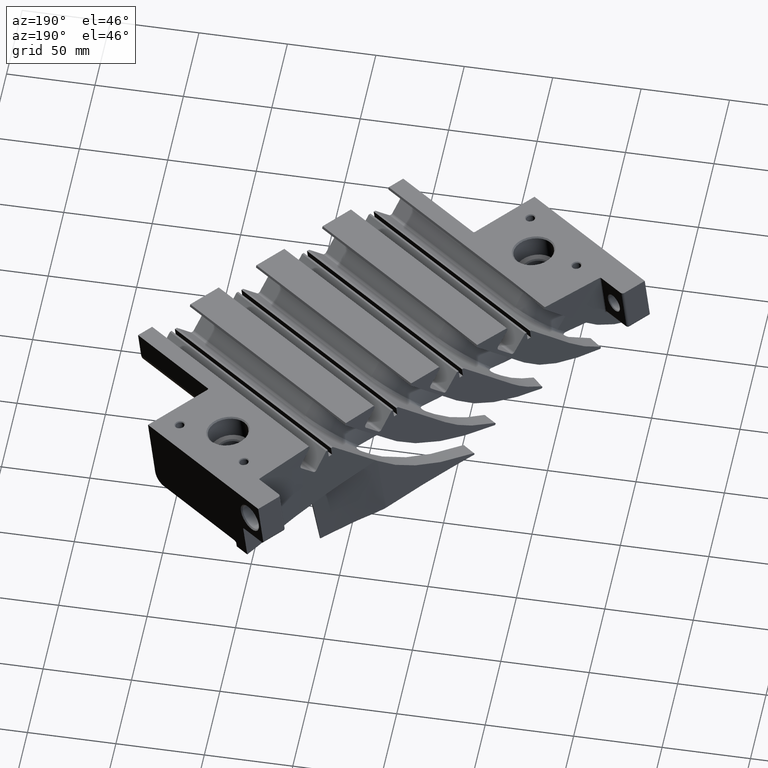
[diagram: clean part render]
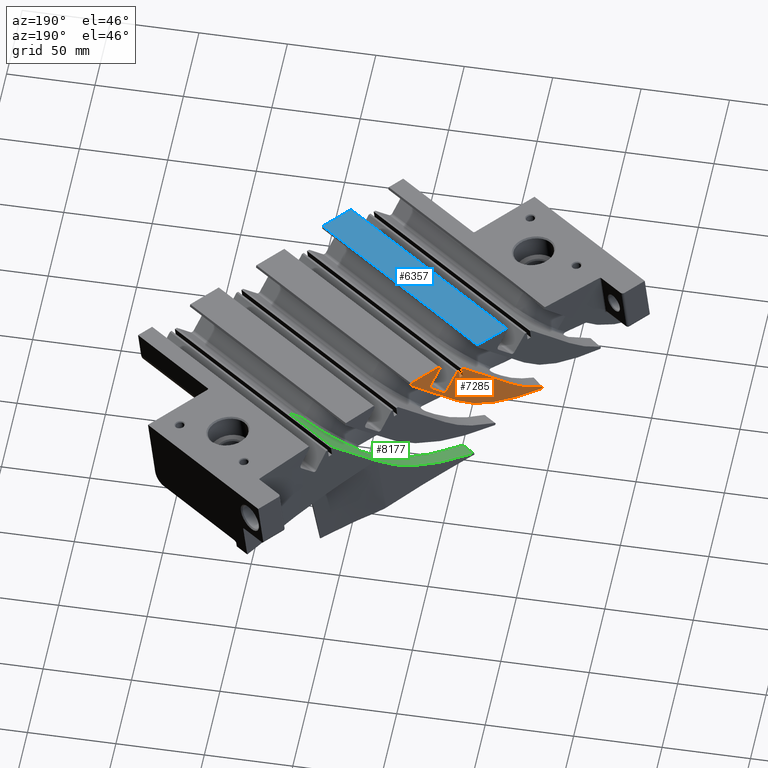
[diagram: same view with three faces highlighted in distinct colors, each labeled with its STEP entity id]
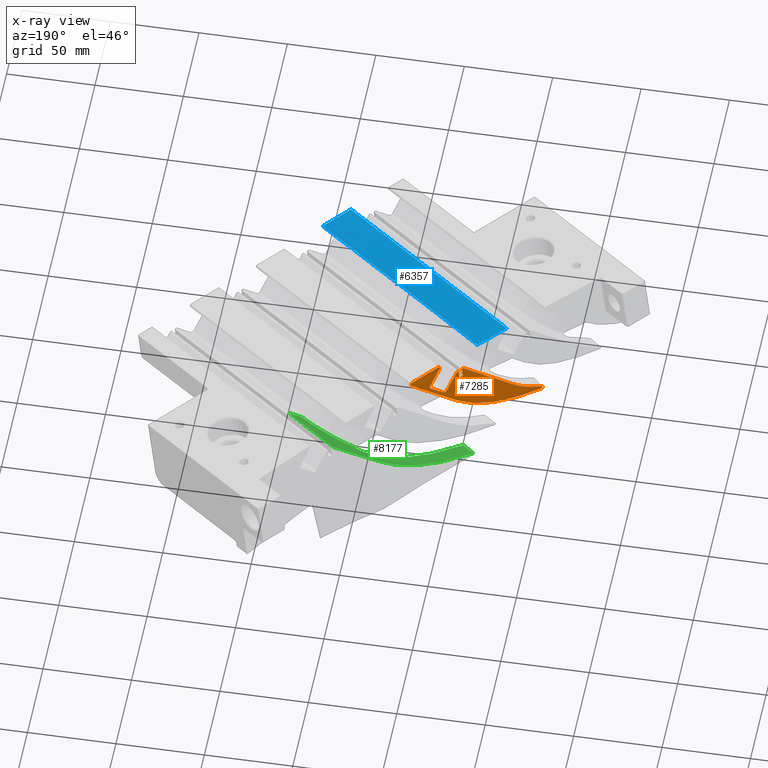
[diagram: x-ray of the same camera — body ghosted, the three highlighted faces saturated]
A machine part, auxiliary view with three faces highlighted in distinct colors.
The next image is the same camera in x-ray (body ghosted, the three faces saturated) — at least one of them is partly hidden behind the body in this view.
Their STEP definitions:

[orange] entity #7285 — the highlighted face is a freeform B-spline surface patch.
#100=CARTESIAN_POINT('',(8.946163377783E1,-2.845876191204E1,-4.262308605086E0));
#101=CARTESIAN_POINT('',(8.937548008183E1,-2.855511276841E1,-4.258078233297E0));
#102=CARTESIAN_POINT('',(8.920271211569E1,-2.874730867778E1,-4.249518315818E0));
#103=CARTESIAN_POINT('',(8.902902771278E1,-2.893849862115E1,-4.240761547462E0));
#104=CARTESIAN_POINT('',(8.894195803655E1,-2.903384340409E1,-4.236334197847E0));
#999=CARTESIAN_POINT('',(8.946163377783E1,-2.845876191204E1,-4.262308605086E0));
#1000=CARTESIAN_POINT('',(8.946287005312E1,-2.845549072981E1,
-4.270871892415E0));
#1001=CARTESIAN_POINT('',(8.946534004942E1,-2.844895263744E1,
-4.287988062591E0));
#1002=CARTESIAN_POINT('',(8.946780734160E1,-2.844242076865E1,
-4.305082174093E0));
#1003=CARTESIAN_POINT('',(8.946903971757E1,-2.843915695431E1,
-4.313624021398E0));
#1005=CARTESIAN_POINT('',(8.892093624821E1,-2.904570831648E1,
-4.286235261508E0));
#1006=CARTESIAN_POINT('',(8.892443825122E1,-2.904373228056E1,
-4.277923208194E0));
#1007=CARTESIAN_POINT('',(8.893144388574E1,-2.903977875934E1,
-4.261294310962E0));
#1008=CARTESIAN_POINT('',(8.893845277690E1,-2.903582233908E1,
-4.244655832446E0));
#1009=CARTESIAN_POINT('',(8.894195803655E1,-2.903384340409E1,
-4.236334197847E0));
#1011=CARTESIAN_POINT('',(8.908861255897E1,-2.879380619384E1,
-4.602986678249E0));
#1012=CARTESIAN_POINT('',(8.906087668636E1,-2.883567044627E1,
-4.550454539235E0));
#1013=CARTESIAN_POINT('',(8.900519497087E1,-2.891951857642E1,
-4.445130539331E0));
#1014=CARTESIAN_POINT('',(8.894909268589E1,-2.900360538389E1,
-4.339286969117E0));
#1015=CARTESIAN_POINT('',(8.892093624821E1,-2.904570831648E1,
-4.286235261508E0));
#1017=CARTESIAN_POINT('',(8.907747120095E1,-2.878752692183E1,
-4.686870153948E0));
#1018=CARTESIAN_POINT('',(8.908341370258E1,-2.878258915587E1,
-4.679797619225E0));
#1019=CARTESIAN_POINT('',(8.909313966587E1,-2.877595966487E1,
-4.661607258736E0));
#1020=CARTESIAN_POINT('',(8.909741268266E1,-2.877834750331E1,
-4.629529415606E0));
#1021=CARTESIAN_POINT('',(8.909261868131E1,-2.878775939231E1,
-4.610574331197E0));
#1022=CARTESIAN_POINT('',(8.908861255897E1,-2.879380619384E1,
-4.602986678249E0));
#1024=CARTESIAN_POINT('',(8.883306463128E1,-2.898981758871E1,
-4.977120604081E0));
#1025=CARTESIAN_POINT('',(8.887408283082E1,-2.895600065330E1,
-4.928514751475E0));
#1026=CARTESIAN_POINT('',(8.895583438532E1,-2.888846762105E1,
-4.831533602295E0));
#1027=CARTESIAN_POINT('',(8.903701947092E1,-2.882113922647E1,
-4.735014232430E0));
#1028=CARTESIAN_POINT('',(8.907747120095E1,-2.878752692183E1,
-4.686870153948E0));
#1030=CARTESIAN_POINT('',(8.877583323634E1,-2.905239854072E1,
-4.974203785853E0));
#1031=CARTESIAN_POINT('',(8.877986615165E1,-2.904638147379E1,
-4.981793114192E0));
#1032=CARTESIAN_POINT('',(8.879112863677E1,-2.903172372354E1,
-4.993144222776E0));
#1033=CARTESIAN_POINT('',(8.881302455708E1,-2.900778383687E1,
-4.994247269520E0));
#1034=CARTESIAN_POINT('',(8.882709947722E1,-2.899473548447E1,
-4.984189207831E0));
#1035=CARTESIAN_POINT('',(8.883306463128E1,-2.898981758871E1,
-4.977120604081E0));
#1037=CARTESIAN_POINT('',(8.859266653424E1,-2.932431284309E1,
-4.630469051386E0));
#1038=CARTESIAN_POINT('',(8.862344271662E1,-2.927885186958E1,
-4.688065712194E0));
#1039=CARTESIAN_POINT('',(8.868474643542E1,-2.918807161736E1,
-4.802951447719E0));
#1040=CARTESIAN_POINT('',(8.874555360030E1,-2.909757543698E1,
-4.917222152857E0));
#1041=CARTESIAN_POINT('',(8.877583323634E1,-2.905239854072E1,
-4.974203785853E0));
#1043=CARTESIAN_POINT('',(8.856275093231E1,-2.935666982466E1,
-4.628917813523E0));
#1044=CARTESIAN_POINT('',(8.856774079683E1,-2.935127595445E1,
-4.629176797427E0));
#1045=CARTESIAN_POINT('',(8.857771659389E1,-2.934048925294E1,
-4.629694320747E0));
#1046=CARTESIAN_POINT('',(8.858768453033E1,-2.932970463236E1,
-4.630210955775E0));
#1047=CARTESIAN_POINT('',(8.859266653424E1,-2.932431284309E1,
-4.630469051386E0));
#1049=CARTESIAN_POINT('',(8.853820586676E1,-2.934283921880E1,
-4.813783316668E0));
#1050=CARTESIAN_POINT('',(8.854229527407E1,-2.934514350794E1,
-4.782983174247E0));
#1051=CARTESIAN_POINT('',(8.855047552566E1,-2.934975289807E1,
-4.721372114638E0));
#1052=CARTESIAN_POINT('',(8.855865865112E1,-2.935436391186E1,
-4.659739505487E0));
#1053=CARTESIAN_POINT('',(8.856275093231E1,-2.935666982466E1,
-4.628917813523E0));
#1055=CARTESIAN_POINT('',(8.847708132547E1,-2.940883206263E1,
-4.810604792936E0));
#1056=CARTESIAN_POINT('',(8.848728513493E1,-2.939782896612E1,
-4.811136402228E0));
#1057=CARTESIAN_POINT('',(8.850767635855E1,-2.937582705349E1,
-4.812197763567E0));
#1058=CARTESIAN_POINT('',(8.852803481970E1,-2.935383372808E1,
-4.813255416137E0));
#1059=CARTESIAN_POINT('',(8.853820586676E1,-2.934283921880E1,
-4.813783316668E0));
#1061=CARTESIAN_POINT('',(8.850162663687E1,-2.942266289262E1,
-4.625739339223E0));
#1062=CARTESIAN_POINT('',(8.849753424678E1,-2.942035690422E1,
-4.656561535283E0));
#1063=CARTESIAN_POINT('',(8.848935097144E1,-2.941574577747E1,
-4.718194640292E0));
#1064=CARTESIAN_POINT('',(8.848117070583E1,-2.941113635088E1,
-4.779805171088E0));
#1065=CARTESIAN_POINT('',(8.847708132547E1,-2.940883206263E1,
-4.810604792936E0));
#1067=CARTESIAN_POINT('',(8.847143845542E1,-2.945519667958E1,
-4.624165132177E0));
#1068=CARTESIAN_POINT('',(8.847647379201E1,-2.944977334445E1,
-4.624427950072E0));
#1069=CARTESIAN_POINT('',(8.848654049105E1,-2.943892771044E1,
-4.624953135583E0));
#1070=CARTESIAN_POINT('',(8.849659924519E1,-2.942808415209E1,
-4.625477421210E0));
#1071=CARTESIAN_POINT('',(8.850162663687E1,-2.942266289262E1,
-4.625739339223E0));
#1073=CARTESIAN_POINT('',(8.753459033394E1,-3.020545327361E1,
-5.709313513520E0));
#1074=CARTESIAN_POINT('',(8.757362052753E1,-3.017476576013E1,
-5.664065513246E0));
#1075=CARTESIAN_POINT('',(8.765168063397E1,-3.011321990205E1,
-5.573711439021E0));
#1076=CARTESIAN_POINT('',(8.776855495830E1,-3.002059730731E1,
-5.438683080467E0));
#1077=CARTESIAN_POINT('',(8.788563848183E1,-2.992737124436E1,
-5.303494103930E0));
#1078=CARTESIAN_POINT('',(8.800240233295E1,-2.983399630999E1,
-5.168606107371E0));
#1079=CARTESIAN_POINT('',(8.811898429774E1,-2.974039069352E1,
-5.033744635627E0));
#1080=CARTESIAN_POINT('',(8.823591327883E1,-2.964614605080E1,
-4.898215833797E0));
#1081=CARTESIAN_POINT('',(8.835352894390E1,-2.955099419173E1,
-4.761568990011E0));
#1082=CARTESIAN_POINT('',(8.843209315597E1,-2.948720209033E1,
-4.670056459950E0));
#1083=CARTESIAN_POINT('',(8.847143845542E1,-2.945519667958E1,
-4.624165132177E0));
#1085=CARTESIAN_POINT('',(8.695416159686E1,-3.069766344773E1,
-6.186499969100E0));
#1086=CARTESIAN_POINT('',(8.700552886775E1,-3.065182787533E1,
-6.157512738951E0));
#1087=CARTESIAN_POINT('',(8.710698984174E1,-3.056216053126E1,
-6.094774612255E0));
#1088=CARTESIAN_POINT('',(8.725579094780E1,-3.043375311450E1,
-5.984319202616E0));
#1089=CARTESIAN_POINT('',(8.739922855968E1,-3.031366219992E1,
-5.856990916949E0));
#1090=CARTESIAN_POINT('',(8.749025905142E1,-3.024032439497E1,
-5.760633467989E0));
#1091=CARTESIAN_POINT('',(8.753459033394E1,-3.020545327361E1,
-5.709313513520E0));
#1093=CARTESIAN_POINT('',(8.695916166783E1,-3.068070918669E1,
-6.243229404076E0));
#1094=CARTESIAN_POINT('',(8.695329899388E1,-3.068642207965E1,
-6.244254163487E0));
#1095=CARTESIAN_POINT('',(8.694427927913E1,-3.069631106621E1,
-6.240571259846E0));
#1096=CARTESIAN_POINT('',(8.693624519243E1,-3.070825545353E1,
-6.222314545738E0));
#1097=CARTESIAN_POINT('',(8.694067106004E1,-3.070855849380E1,
-6.199547332253E0));
#1098=CARTESIAN_POINT('',(8.694849514614E1,-3.070271968118E1,
-6.189697631271E0));
#1099=CARTESIAN_POINT('',(8.695416159686E1,-3.069766344773E1,
-6.186499969100E0));
#1101=CARTESIAN_POINT('',(8.857436367819E1,-2.918158034825E1,
-5.377847189454E0));
#1102=CARTESIAN_POINT('',(8.848234554537E1,-2.925681527769E1,
-5.486564942768E0));
#1103=CARTESIAN_POINT('',(8.828783748665E1,-2.942349645255E1,
-5.677611255778E0));
#1104=CARTESIAN_POINT('',(8.796414214316E1,-2.971768970935E1,
-5.901564804686E0));
#1105=CARTESIAN_POINT('',(8.762996100756E1,-3.003235797574E1,
-6.062704623701E0));
#1106=CARTESIAN_POINT('',(8.729345825637E1,-3.035553917146E1,
-6.175079249926E0));
#1107=CARTESIAN_POINT('',(8.707065021630E1,-3.057206901141E1,
-6.223741713174E0));
#1108=CARTESIAN_POINT('',(8.695916166783E1,-3.068070918669E1,
-6.243229404076E0));
#1110=CARTESIAN_POINT('',(8.946903971757E1,-2.843915695431E1,
-4.313624021398E0));
#1111=CARTESIAN_POINT('',(8.941648419432E1,-2.848338895503E1,
-4.376656096811E0));
#1112=CARTESIAN_POINT('',(8.931343578902E1,-2.856989855945E1,
-4.500043693703E0));
#1113=CARTESIAN_POINT('',(8.916938077229E1,-2.869028270485E1,
-4.672029369104E0));
#1114=CARTESIAN_POINT('',(8.902284585922E1,-2.881219221488E1,
-4.846500457116E0));
#1115=CARTESIAN_POINT('',(8.887379503748E1,-2.893560549768E1,
-5.023498495640E0));
#1116=CARTESIAN_POINT('',(8.872333064104E1,-2.905957395508E1,
-5.201755015172E0));
#1117=CARTESIAN_POINT('',(8.862396454695E1,-2.914102619064E1,
-5.319244663522E0));
#1118=CARTESIAN_POINT('',(8.857436367819E1,-2.918158034825E1,
-5.377847189454E0));
#1949=CARTESIAN_POINT('',(8.857436367819E1,-2.918158034825E1,
-5.377847189454E0));
#1958=CARTESIAN_POINT('',(8.695916166783E1,-3.068070918669E1,
-6.243229404076E0));
#5337=CARTESIAN_POINT('',(8.753459033394E1,-3.020545327361E1,
-5.709313513520E0));
#5339=VERTEX_POINT('',#5337);
#5350=VERTEX_POINT('',#1949);
#5410=VERTEX_POINT('',#1958);
#5411=VERTEX_POINT('',#1099);
#5690=VERTEX_POINT('',#1055);
#5691=VERTEX_POINT('',#1059);
#5692=VERTEX_POINT('',#1053);
#5742=VERTEX_POINT('',#1067);
#5743=VERTEX_POINT('',#1071);
#5744=VERTEX_POINT('',#1047);
#5745=VERTEX_POINT('',#1041);
#5746=VERTEX_POINT('',#1035);
#5747=VERTEX_POINT('',#1028);
#5748=VERTEX_POINT('',#1022);
#5863=VERTEX_POINT('',#999);
#5864=VERTEX_POINT('',#1003);
#5887=CARTESIAN_POINT('',(8.892093624821E1,-2.904570831648E1,
-4.286235261508E0));
#5888=VERTEX_POINT('',#5887);
#5889=VERTEX_POINT('',#1009);
#7215=CARTESIAN_POINT('',(8.527929664171E1,-3.279407169924E1,
-3.928374781258E0));
#7216=CARTESIAN_POINT('',(8.520420680663E1,-3.263996682859E1,
-5.034623500693E0));
#7217=CARTESIAN_POINT('',(8.512911697155E1,-3.248586195794E1,
-6.140872220129E0));
#7218=CARTESIAN_POINT('',(8.505402713648E1,-3.233175708729E1,
-7.247120939564E0));
#7219=CARTESIAN_POINT('',(8.547305288630E1,-3.261455185466E1,
-3.916648843704E0));
#7220=CARTESIAN_POINT('',(8.539455477180E1,-3.246352989175E1,
-5.023094899642E0));
#7221=CARTESIAN_POINT('',(8.531605665729E1,-3.231250792884E1,
-6.129540955580E0));
#7222=CARTESIAN_POINT('',(8.523755854279E1,-3.216148596593E1,
-7.235987011518E0));
#7223=CARTESIAN_POINT('',(8.642823192124E1,-3.171822243070E1,
-3.865422063790E0));
#7224=CARTESIAN_POINT('',(8.633306475849E1,-3.158246692434E1,
-4.972718262631E0));
#7225=CARTESIAN_POINT('',(8.623789759574E1,-3.144671141799E1,
-6.080014461472E0));
#7226=CARTESIAN_POINT('',(8.614273043299E1,-3.131095591164E1,
-7.187310660313E0));
#7227=CARTESIAN_POINT('',(8.809324455801E1,-3.005651846126E1,
-3.833110605749E0));
#7228=CARTESIAN_POINT('',(8.796971409852E1,-2.994830621822E1,
-4.940913958492E0));
#7229=CARTESIAN_POINT('',(8.784618363902E1,-2.984009397518E1,
-6.048717311234E0));
#7230=CARTESIAN_POINT('',(8.772265317953E1,-2.973188173214E1,
-7.156520663977E0));
#7231=CARTESIAN_POINT('',(9.022364637914E1,-2.771331690824E1,
-3.927835042623E0));
#7232=CARTESIAN_POINT('',(9.005733748164E1,-2.765089623640E1,
-5.033859498225E0));
#7233=CARTESIAN_POINT('',(8.989102858414E1,-2.758847556455E1,
-6.139883953827E0));
#7234=CARTESIAN_POINT('',(8.972471968664E1,-2.752605489271E1,
-7.245908409429E0));
#7235=CARTESIAN_POINT('',(9.179730890071E1,-2.578648375008E1,
-4.143633527895E0));
#7236=CARTESIAN_POINT('',(9.159079920001E1,-2.577219361588E1,
-5.244404762080E0));
#7237=CARTESIAN_POINT('',(9.138428949932E1,-2.575790348168E1,
-6.345175996265E0));
#7238=CARTESIAN_POINT('',(9.117777979862E1,-2.574361334748E1,
-7.445947230450E0));
#7239=CARTESIAN_POINT('',(9.265457034269E1,-2.464343377114E1,
-4.338305479837E0));
#7240=CARTESIAN_POINT('',(9.242279578420E1,-2.466234256325E1,
-5.433390321022E0));
#7241=CARTESIAN_POINT('',(9.219102122571E1,-2.468125135537E1,
-6.528475162207E0));
#7242=CARTESIAN_POINT('',(9.195924666721E1,-2.470016014748E1,
-7.623560003392E0));
#7243=CARTESIAN_POINT('',(9.285586569760E1,-2.436904892121E1,
-4.389010867698E0));
#7244=CARTESIAN_POINT('',(9.261796902390E1,-2.439619142625E1,
-5.482561502054E0));
#7245=CARTESIAN_POINT('',(9.238007235019E1,-2.442333393130E1,
-6.576112136410E0));
#7246=CARTESIAN_POINT('',(9.214217567649E1,-2.445047643634E1,
-7.669662770766E0));
#7247=B_SPLINE_SURFACE_WITH_KNOTS('',3,3,((#7215,#7216,#7217,#7218),(#7219,
#7220,#7221,#7222),(#7223,#7224,#7225,#7226),(#7227,#7228,#7229,#7230),(#7231,
#7232,#7233,#7234),(#7235,#7236,#7237,#7238),(#7239,#7240,#7241,#7242),(#7243,
#7244,#7245,#7246)),.UNSPECIFIED.,.F.,.F.,.F.,(4,1,1,1,1,4),(4,4),(
2.128502944900E-1,2.532503131020E-1,4.132893280498E-1,5.733126536919E-1,
7.333234044237E-1,7.831803366292E-1),(1.892541105755E-1,1.028842921540E0),
.UNSPECIFIED.);
#7249=ORIENTED_EDGE('',*,*,#7248,.F.);
#7250=ORIENTED_EDGE('',*,*,#6371,.T.);
#7252=ORIENTED_EDGE('',*,*,#7251,.F.);
#7254=ORIENTED_EDGE('',*,*,#7253,.F.);
#7256=ORIENTED_EDGE('',*,*,#7255,.F.);
#7258=ORIENTED_EDGE('',*,*,#7257,.F.);
#7260=ORIENTED_EDGE('',*,*,#7259,.F.);
#7262=ORIENTED_EDGE('',*,*,#7261,.F.);
#7264=ORIENTED_EDGE('',*,*,#7263,.F.);
#7266=ORIENTED_EDGE('',*,*,#7265,.F.);
#7268=ORIENTED_EDGE('',*,*,#7267,.F.);
#7270=ORIENTED_EDGE('',*,*,#7269,.F.);
#7272=ORIENTED_EDGE('',*,*,#7271,.F.);
#7274=ORIENTED_EDGE('',*,*,#7273,.F.);
#7276=ORIENTED_EDGE('',*,*,#7275,.F.);
#7278=ORIENTED_EDGE('',*,*,#7277,.F.);
#7280=ORIENTED_EDGE('',*,*,#7279,.F.);
#7282=ORIENTED_EDGE('',*,*,#7281,.F.);
#7283=EDGE_LOOP('',(#7249,#7250,#7252,#7254,#7256,#7258,#7260,#7262,#7264,#7266,
#7268,#7270,#7272,#7274,#7276,#7278,#7280,#7282));
#7284=FACE_OUTER_BOUND('',#7283,.F.);
#7285=ADVANCED_FACE('',(#7284),#7247,.T.);
#105=B_SPLINE_CURVE_WITH_KNOTS('',3,(#100,#101,#102,#103,#104),.UNSPECIFIED.,
.F.,.F.,(4,1,4),(0.E0,5.E-1,1.E0),.UNSPECIFIED.);
#1004=B_SPLINE_CURVE_WITH_KNOTS('',3,(#999,#1000,#1001,#1002,#1003),
.UNSPECIFIED.,.F.,.F.,(4,1,4),(0.E0,5.E-1,1.E0),.UNSPECIFIED.);
#1010=B_SPLINE_CURVE_WITH_KNOTS('',3,(#1005,#1006,#1007,#1008,#1009),
.UNSPECIFIED.,.F.,.F.,(4,1,4),(0.E0,5.E-1,1.E0),.UNSPECIFIED.);
#1016=B_SPLINE_CURVE_WITH_KNOTS('',3,(#1011,#1012,#1013,#1014,#1015),
.UNSPECIFIED.,.F.,.F.,(4,1,4),(0.E0,5.E-1,1.E0),.UNSPECIFIED.);
#1023=B_SPLINE_CURVE_WITH_KNOTS('',3,(#1017,#1018,#1019,#1020,#1021,#1022),
.UNSPECIFIED.,.F.,.F.,(4,1,1,4),(0.E0,3.333333333333E-1,6.666666666667E-1,1.E0),
.UNSPECIFIED.);
#1029=B_SPLINE_CURVE_WITH_KNOTS('',3,(#1024,#1025,#1026,#1027,#1028),
.UNSPECIFIED.,.F.,.F.,(4,1,4),(0.E0,5.E-1,1.E0),.UNSPECIFIED.);
#1036=B_SPLINE_CURVE_WITH_KNOTS('',3,(#1030,#1031,#1032,#1033,#1034,#1035),
.UNSPECIFIED.,.F.,.F.,(4,1,1,4),(0.E0,3.333333333333E-1,6.666666666667E-1,1.E0),
.UNSPECIFIED.);
#1042=B_SPLINE_CURVE_WITH_KNOTS('',3,(#1037,#1038,#1039,#1040,#1041),
.UNSPECIFIED.,.F.,.F.,(4,1,4),(0.E0,5.E-1,1.E0),.UNSPECIFIED.);
#1048=B_SPLINE_CURVE_WITH_KNOTS('',3,(#1043,#1044,#1045,#1046,#1047),
.UNSPECIFIED.,.F.,.F.,(4,1,4),(0.E0,5.E-1,1.E0),.UNSPECIFIED.);
#1054=B_SPLINE_CURVE_WITH_KNOTS('',3,(#1049,#1050,#1051,#1052,#1053),
.UNSPECIFIED.,.F.,.F.,(4,1,4),(0.E0,5.E-1,1.E0),.UNSPECIFIED.);
#1060=B_SPLINE_CURVE_WITH_KNOTS('',3,(#1055,#1056,#1057,#1058,#1059),
.UNSPECIFIED.,.F.,.F.,(4,1,4),(0.E0,5.E-1,1.E0),.UNSPECIFIED.);
#1066=B_SPLINE_CURVE_WITH_KNOTS('',3,(#1061,#1062,#1063,#1064,#1065),
.UNSPECIFIED.,.F.,.F.,(4,1,4),(0.E0,5.E-1,1.E0),.UNSPECIFIED.);
#1072=B_SPLINE_CURVE_WITH_KNOTS('',3,(#1067,#1068,#1069,#1070,#1071),
.UNSPECIFIED.,.F.,.F.,(4,1,4),(0.E0,5.E-1,1.E0),.UNSPECIFIED.);
#1084=B_SPLINE_CURVE_WITH_KNOTS('',3,(#1073,#1074,#1075,#1076,#1077,#1078,#1079,
#1080,#1081,#1082,#1083),.UNSPECIFIED.,.F.,.F.,(4,1,1,1,1,1,1,1,4),(0.E0,
1.25E-1,2.5E-1,3.75E-1,5.E-1,6.25E-1,7.5E-1,8.75E-1,1.E0),.UNSPECIFIED.);
#1092=B_SPLINE_CURVE_WITH_KNOTS('',3,(#1085,#1086,#1087,#1088,#1089,#1090,
#1091),.UNSPECIFIED.,.F.,.F.,(4,1,1,1,4),(0.E0,2.5E-1,5.E-1,7.5E-1,1.E0),
.UNSPECIFIED.);
#1100=B_SPLINE_CURVE_WITH_KNOTS('',3,(#1093,#1094,#1095,#1096,#1097,#1098,
#1099),.UNSPECIFIED.,.F.,.F.,(4,1,1,1,4),(0.E0,2.5E-1,5.E-1,7.5E-1,1.E0),
.UNSPECIFIED.);
#1109=B_SPLINE_CURVE_WITH_KNOTS('',3,(#1101,#1102,#1103,#1104,#1105,#1106,#1107,
#1108),.UNSPECIFIED.,.F.,.F.,(4,1,1,1,1,4),(0.E0,2.E-1,4.E-1,6.E-1,8.E-1,1.E0),
.UNSPECIFIED.);
#1119=B_SPLINE_CURVE_WITH_KNOTS('',3,(#1110,#1111,#1112,#1113,#1114,#1115,#1116,
#1117,#1118),.UNSPECIFIED.,.F.,.F.,(4,1,1,1,1,1,4),(0.E0,1.666666666667E-1,
3.333333333333E-1,5.E-1,6.666666666667E-1,8.333333333333E-1,1.E0),
.UNSPECIFIED.);
#6371=EDGE_CURVE('',#5863,#5889,#105,.T.);
#7248=EDGE_CURVE('',#5863,#5864,#1004,.T.);
#7251=EDGE_CURVE('',#5888,#5889,#1010,.T.);
#7253=EDGE_CURVE('',#5748,#5888,#1016,.T.);
#7255=EDGE_CURVE('',#5747,#5748,#1023,.T.);
#7257=EDGE_CURVE('',#5746,#5747,#1029,.T.);
#7259=EDGE_CURVE('',#5745,#5746,#1036,.T.);
#7261=EDGE_CURVE('',#5744,#5745,#1042,.T.);
#7263=EDGE_CURVE('',#5692,#5744,#1048,.T.);
#7265=EDGE_CURVE('',#5691,#5692,#1054,.T.);
#7267=EDGE_CURVE('',#5690,#5691,#1060,.T.);
#7269=EDGE_CURVE('',#5743,#5690,#1066,.T.);
#7271=EDGE_CURVE('',#5742,#5743,#1072,.T.);
#7273=EDGE_CURVE('',#5339,#5742,#1084,.T.);
#7275=EDGE_CURVE('',#5411,#5339,#1092,.T.);
#7277=EDGE_CURVE('',#5410,#5411,#1100,.T.);
#7279=EDGE_CURVE('',#5350,#5410,#1109,.T.);
#7281=EDGE_CURVE('',#5864,#5350,#1119,.T.);

[blue] entity #6357 — the highlighted planar face has unit normal (-0.1313, 0.074, -0.9886).
#62=CARTESIAN_POINT('',(8.937799907385E1,-3.087158081815E1,-4.431824614479E0));
#63=CARTESIAN_POINT('',(8.930082159332E1,-3.080081231407E1,-4.416275945113E0));
#64=CARTESIAN_POINT('',(8.911766576083E1,-3.063287389509E1,-4.379374629407E0));
#65=CARTESIAN_POINT('',(8.882130233112E1,-3.035985430572E1,-4.319574310893E0));
#66=CARTESIAN_POINT('',(8.851139407875E1,-3.007119419556E1,-4.256799385279E0));
#67=CARTESIAN_POINT('',(8.831072018520E1,-2.988251762432E1,-4.216025925299E0));
#68=CARTESIAN_POINT('',(8.822811159693E1,-2.980457262804E1,-4.199218648212E0));
#70=DIRECTION('',(-7.309666317716E-1,6.663977980625E-1,1.469753651941E-1));
#71=VECTOR('',#70,4.044076369100E0);
#72=CARTESIAN_POINT('',(9.233408395600E1,-3.356654440571E1,-5.026204215700E0));
#73=LINE('',#72,#71);
#74=DIRECTION('',(7.309661104288E-1,-6.663983095875E-1,-1.469756387416E-1));
#75=VECTOR('',#74,5.650273357463E0);
#76=CARTESIAN_POINT('',(8.767483196309E1,-3.038739105765E1,-4.169357225876E0));
#77=LINE('',#76,#75);
#78=CARTESIAN_POINT('',(8.822811159693E1,-2.980457262804E1,-4.199218648212E0));
#79=CARTESIAN_POINT('',(8.813640882865E1,-2.990220363386E1,-4.194347063987E0));
#80=CARTESIAN_POINT('',(8.795249903144E1,-3.009696401574E1,-4.184494982836E0));
#81=CARTESIAN_POINT('',(8.776755818745E1,-3.029074835783E1,-4.174438733121E0));
#82=CARTESIAN_POINT('',(8.767483196309E1,-3.038739105765E1,-4.169357225876E0));
#828=DIRECTION('',(-6.696621439945E-1,-7.419141415698E-1,3.340687712730E-2));
#829=VECTOR('',#828,7.900904339423E-1);
#830=CARTESIAN_POINT('',(9.233408395600E1,-3.356654440571E1,-5.026204215700E0));
#831=LINE('',#830,#829);
#5842=CARTESIAN_POINT('',(8.822811159693E1,-2.980457262804E1,
-4.199218648212E0));
#5844=VERTEX_POINT('',#5842);
#5847=VERTEX_POINT('',#62);
#5849=CARTESIAN_POINT('',(9.233408395600E1,-3.356654440571E1,
-5.026204215700E0));
#5851=VERTEX_POINT('',#5849);
#5852=VERTEX_POINT('',#82);
#5853=CARTESIAN_POINT('',(9.180499030206E1,-3.415272367177E1,
-4.999809761654E0));
#5854=VERTEX_POINT('',#5853);
#6340=CARTESIAN_POINT('',(9.690830299900E1,-2.851375952336E1,
-5.255514472258E0));
#6341=DIRECTION('',(-1.313055912949E-1,7.400472631934E-2,-9.885758150881E-1));
#6342=DIRECTION('',(-7.309661104288E-1,6.663983095875E-1,1.469756387416E-1));
#6343=AXIS2_PLACEMENT_3D('',#6340,#6341,#6342);
#6344=PLANE('',#6343);
#6346=ORIENTED_EDGE('',*,*,#6345,.F.);
#6348=ORIENTED_EDGE('',*,*,#6347,.F.);
#6350=ORIENTED_EDGE('',*,*,#6349,.T.);
#6352=ORIENTED_EDGE('',*,*,#6351,.F.);
#6354=ORIENTED_EDGE('',*,*,#6353,.F.);
#6355=EDGE_LOOP('',(#6346,#6348,#6350,#6352,#6354));
#6356=FACE_OUTER_BOUND('',#6355,.F.);
#6357=ADVANCED_FACE('',(#6356),#6344,.F.);
#69=B_SPLINE_CURVE_WITH_KNOTS('',3,(#62,#63,#64,#65,#66,#67,#68),.UNSPECIFIED.,
.F.,.F.,(4,1,1,1,4),(0.E0,2.136913780080E-1,5.058718569416E-1,7.980523358752E-1,
1.E0),.UNSPECIFIED.);
#83=B_SPLINE_CURVE_WITH_KNOTS('',3,(#78,#79,#80,#81,#82),.UNSPECIFIED.,.F.,.F.,(
4,1,4),(0.E0,5.E-1,1.E0),.UNSPECIFIED.);
#6345=EDGE_CURVE('',#5847,#5844,#69,.T.);
#6347=EDGE_CURVE('',#5851,#5847,#73,.T.);
#6349=EDGE_CURVE('',#5851,#5854,#831,.T.);
#6351=EDGE_CURVE('',#5852,#5854,#77,.T.);
#6353=EDGE_CURVE('',#5844,#5852,#83,.T.);

[green] entity #8177 — the highlighted face is a freeform B-spline surface patch.
#858=CARTESIAN_POINT('',(8.820866746983E1,-2.921801023023E1,-7.015004703385E0));
#859=CARTESIAN_POINT('',(8.829315163787E1,-2.913318904900E1,-6.990042870217E0));
#860=CARTESIAN_POINT('',(8.845561514056E1,-2.897043402122E1,-6.936322215482E0));
#861=CARTESIAN_POINT('',(8.868114887501E1,-2.874583060648E1,-6.845605299368E0));
#862=CARTESIAN_POINT('',(8.888632319374E1,-2.854306202044E1,-6.747675606041E0));
#863=CARTESIAN_POINT('',(8.906878010019E1,-2.836444966680E1,-6.646372834788E0));
#864=CARTESIAN_POINT('',(8.923177823692E1,-2.820656926246E1,-6.543276228716E0));
#865=CARTESIAN_POINT('',(8.938099618920E1,-2.806369369119E1,-6.437410045715E0));
#866=CARTESIAN_POINT('',(8.952102021176E1,-2.793130531164E1,-6.327106649696E0));
#867=CARTESIAN_POINT('',(8.965626324840E1,-2.780528661296E1,-6.209263057938E0));
#868=CARTESIAN_POINT('',(8.978975288981E1,-2.768314299766E1,-6.080146107762E0));
#869=CARTESIAN_POINT('',(8.991922128514E1,-2.756760864482E1,-5.939240428137E0));
#870=CARTESIAN_POINT('',(9.000234430153E1,-2.749517520339E1,-5.839802539496E0));
#871=CARTESIAN_POINT('',(9.004370177276E1,-2.745919817205E1,-5.789603559678E0));
#1368=CARTESIAN_POINT('',(9.089690306361E1,-2.670809204231E1,
-4.740674494365E0));
#1374=CARTESIAN_POINT('',(9.006685794482E1,-2.743990539464E1,
-5.761141676702E0));
#1375=CARTESIAN_POINT('',(9.010201349820E1,-2.740935053943E1,
-5.718234109425E0));
#1376=CARTESIAN_POINT('',(9.017230457933E1,-2.734699990180E1,
-5.632241437491E0));
#1377=CARTESIAN_POINT('',(9.027542209451E1,-2.725741672645E1,
-5.505980136914E0));
#1378=CARTESIAN_POINT('',(9.038093086859E1,-2.716481031465E1,
-5.376692160464E0));
#1379=CARTESIAN_POINT('',(9.049258945622E1,-2.706666146226E1,
-5.239521431353E0));
#1380=CARTESIAN_POINT('',(9.061452418920E1,-2.695894760955E1,
-5.089825815914E0));
#1381=CARTESIAN_POINT('',(9.074932024807E1,-2.683954388007E1,
-4.923348784820E0));
#1382=CARTESIAN_POINT('',(9.084642339565E1,-2.675312675080E1,
-4.803215579127E0));
#1383=CARTESIAN_POINT('',(9.089690306361E1,-2.670809204231E1,
-4.740674494365E0));
#1385=CARTESIAN_POINT('',(9.006685794482E1,-2.743990539464E1,
-5.761141676702E0));
#1584=CARTESIAN_POINT('',(9.040603100434E1,-2.763915313880E1,
-5.741701750106E0));
#1585=CARTESIAN_POINT('',(9.038177193242E1,-2.766026403143E1,
-5.771379801002E0));
#1586=CARTESIAN_POINT('',(9.033314284241E1,-2.770245674758E1,
-5.831137498324E0));
#1587=CARTESIAN_POINT('',(9.025947043543E1,-2.776653827351E1,
-5.920269582412E0));
#1588=CARTESIAN_POINT('',(9.018355787630E1,-2.783312267393E1,
-6.008852291303E0));
#1589=CARTESIAN_POINT('',(9.010383854673E1,-2.790423565297E1,
-6.095740345271E0));
#1590=CARTESIAN_POINT('',(9.001883937946E1,-2.798115759825E1,
-6.182480855826E0));
#1591=CARTESIAN_POINT('',(8.992568642221E1,-2.806673288604E1,
-6.270626000726E0));
#1592=CARTESIAN_POINT('',(8.982184601759E1,-2.816335210366E1,
-6.361817061444E0));
#1593=CARTESIAN_POINT('',(8.970568626345E1,-2.827275121675E1,
-6.455870946629E0));
#1594=CARTESIAN_POINT('',(8.957626618555E1,-2.839608327357E1,
-6.551537888381E0));
#1595=CARTESIAN_POINT('',(8.943275796127E1,-2.853436798987E1,
-6.647397145613E0));
#1596=CARTESIAN_POINT('',(8.927440397102E1,-2.868852370747E1,
-6.741910446814E0));
#1597=CARTESIAN_POINT('',(8.910066075196E1,-2.885922728929E1,
-6.833330756620E0));
#1598=CARTESIAN_POINT('',(8.891128450662E1,-2.904677584386E1,
-6.919915283451E0));
#1599=CARTESIAN_POINT('',(8.870657372204E1,-2.925084045519E1,
-6.999934127984E0));
#1600=CARTESIAN_POINT('',(8.855913971008E1,-2.939858451264E1,
-7.048096868067E0));
#1601=CARTESIAN_POINT('',(8.848266489639E1,-2.947537387843E1,
-7.070641908188E0));
#1603=CARTESIAN_POINT('',(9.040603100434E1,-2.763915313880E1,
-5.741701750106E0));
#1621=CARTESIAN_POINT('',(9.049537046179E1,-2.763954532607E1,
-5.694882987861E0));
#1665=CARTESIAN_POINT('',(9.040603100434E1,-2.763915313880E1,
-5.741701750106E0));
#1666=CARTESIAN_POINT('',(9.041424030258E1,-2.763200528120E1,
-5.731655547002E0));
#1667=CARTESIAN_POINT('',(9.043370322753E1,-2.762234806323E1,
-5.713717603243E0));
#1668=CARTESIAN_POINT('',(9.046771627376E1,-2.762211575854E1,
-5.695599285257E0));
#1669=CARTESIAN_POINT('',(9.048757118347E1,-2.763240850024E1,
-5.693316065298E0));
#1670=CARTESIAN_POINT('',(9.049537046179E1,-2.763954532607E1,
-5.694882987861E0));
#1679=CARTESIAN_POINT('',(9.207600967392E1,-2.778402487380E1,
-4.977831222074E0));
#1680=CARTESIAN_POINT('',(9.202161563179E1,-2.773442060962E1,
-4.966893070752E0));
#1681=CARTESIAN_POINT('',(9.191277832476E1,-2.763517121106E1,
-4.945007170650E0));
#1682=CARTESIAN_POINT('',(9.174895198268E1,-2.748577211885E1,
-4.912063259670E0));
#1683=CARTESIAN_POINT('',(9.158586482629E1,-2.733700929604E1,
-4.879265160632E0));
#1684=CARTESIAN_POINT('',(9.142574253550E1,-2.719090444926E1,
-4.847059839820E0));
#1685=CARTESIAN_POINT('',(9.126326122576E1,-2.704261304330E1,
-4.814377501379E0));
#1686=CARTESIAN_POINT('',(9.109123012292E1,-2.688560182333E1,
-4.779773966152E0));
#1687=CARTESIAN_POINT('',(9.096347503035E1,-2.676892741033E1,
-4.754070913754E0));
#1688=CARTESIAN_POINT('',(9.089690306361E1,-2.670809204231E1,
-4.740674494365E0));
#1690=DIRECTION('',(5.672507452821E-1,4.714794266458E-1,6.752286592160E-1));
#1691=VECTOR('',#1690,4.703951495908E-1);
#1692=CARTESIAN_POINT('',(9.180917767474E1,-2.800580650922E1,
-5.295455508234E0));
#1693=LINE('',#1692,#1691);
#1694=CARTESIAN_POINT('',(9.052734662822E1,-2.766898070701E1,
-5.701431632647E0));
#1695=CARTESIAN_POINT('',(9.053428860991E1,-2.766637101951E1,
-5.695689512939E0));
#1696=CARTESIAN_POINT('',(9.056431930421E1,-2.765747436146E1,
-5.672772037641E0));
#1697=CARTESIAN_POINT('',(9.061470514236E1,-2.764100392087E1,
-5.633187817110E0));
#1698=CARTESIAN_POINT('',(9.068531304125E1,-2.762637392692E1,
-5.584502943356E0));
#1699=CARTESIAN_POINT('',(9.075739823436E1,-2.761683801064E1,
-5.538773548951E0));
#1700=CARTESIAN_POINT('',(9.083158472244E1,-2.761266759296E1,
-5.496239762944E0));
#1701=CARTESIAN_POINT('',(9.093323852788E1,-2.761379992756E1,
-5.443710025780E0));
#1702=CARTESIAN_POINT('',(9.106407535441E1,-2.762852212918E1,
-5.386630925890E0));
#1703=CARTESIAN_POINT('',(9.127686165072E1,-2.767987203861E1,
-5.315524441109E0));
#1704=CARTESIAN_POINT('',(9.153828145671E1,-2.779355562267E1,
-5.268657251202E0));
#1705=CARTESIAN_POINT('',(9.172572259465E1,-2.792966753935E1,
-5.278608259545E0));
#1706=CARTESIAN_POINT('',(9.180917767474E1,-2.800580650922E1,
-5.295455508234E0));
#1708=CARTESIAN_POINT('',(9.049537046179E1,-2.763954532607E1,
-5.694882987861E0));
#1709=CARTESIAN_POINT('',(9.050087665945E1,-2.764458552214E1,
-5.695990555816E0));
#1710=CARTESIAN_POINT('',(9.051219295327E1,-2.765487358338E1,
-5.698216747454E0));
#1711=CARTESIAN_POINT('',(9.052195331571E1,-2.766403801002E1,
-5.700346486974E0));
#1712=CARTESIAN_POINT('',(9.052734662822E1,-2.766898070701E1,
-5.701431632647E0));
#1714=CARTESIAN_POINT('',(8.848266489639E1,-2.947537387843E1,
-7.070641908188E0));
#1715=CARTESIAN_POINT('',(8.839097090676E1,-2.938948599321E1,
-7.052168019660E0));
#1716=CARTESIAN_POINT('',(8.829996393286E1,-2.930349714451E1,
-7.033495862146E0));
#1717=CARTESIAN_POINT('',(8.820866746983E1,-2.921801023023E1,
-7.015004703385E0));
#1719=CARTESIAN_POINT('',(9.006685794482E1,-2.743990539464E1,
-5.761141676702E0));
#1720=CARTESIAN_POINT('',(9.006273595994E1,-2.744315207824E1,
-5.765904774186E0));
#1721=CARTESIAN_POINT('',(9.005588265699E1,-2.744893094719E1,
-5.775537316445E0));
#1722=CARTESIAN_POINT('',(9.004755970208E1,-2.745584168336E1,
-5.784920506832E0));
#1723=CARTESIAN_POINT('',(9.004370177276E1,-2.745919817205E1,
-5.789603559678E0));
#5007=CARTESIAN_POINT('',(9.052734662822E1,-2.766898070701E1,
-5.701431632647E0));
#5019=CARTESIAN_POINT('',(9.180917767474E1,-2.800580650922E1,
-5.295455508234E0));
#5357=VERTEX_POINT('',#5019);
#5375=VERTEX_POINT('',#1385);
#5377=CARTESIAN_POINT('',(9.004370177276E1,-2.745919817205E1,
-5.789603559678E0));
#5379=VERTEX_POINT('',#5377);
#5548=VERTEX_POINT('',#5007);
#5565=VERTEX_POINT('',#1603);
#5567=VERTEX_POINT('',#1621);
#5654=VERTEX_POINT('',#1714);
#5655=VERTEX_POINT('',#1717);
#5795=VERTEX_POINT('',#1368);
#5825=VERTEX_POINT('',#1679);
#7962=CARTESIAN_POINT('',(8.845970039031E1,-2.967483388845E1,
-7.120733649543E0));
#7963=CARTESIAN_POINT('',(8.855942503009E1,-2.957422604031E1,
-7.094210195907E0));
#7964=CARTESIAN_POINT('',(8.875776386827E1,-2.937468694317E1,
-7.034021253865E0));
#7965=CARTESIAN_POINT('',(8.905334704977E1,-2.908034660492E1,
-6.918702462069E0));
#7966=CARTESIAN_POINT('',(8.934603121606E1,-2.879281324622E1,
-6.775198018318E0));
#7967=CARTESIAN_POINT('',(8.958606287392E1,-2.856000275671E1,
-6.628276282663E0));
#7968=CARTESIAN_POINT('',(8.977395534737E1,-2.838114360067E1,
-6.493312243774E0));
#7969=CARTESIAN_POINT('',(8.988951124327E1,-2.827311625822E1,
-6.401519133808E0));
#7970=CARTESIAN_POINT('',(8.998085101482E1,-2.818914780032E1,
-6.323414416688E0));
#7971=CARTESIAN_POINT('',(9.004910007792E1,-2.812676120001E1,
-6.262023412796E0));
#7972=CARTESIAN_POINT('',(9.011678837380E1,-2.806529447210E1,
-6.197645026486E0));
#7973=CARTESIAN_POINT('',(9.017261942834E1,-2.801481327060E1,
-6.141278207713E0));
#7974=CARTESIAN_POINT('',(9.021676170543E1,-2.797517774929E1,
-6.094488928541E0));
#7975=CARTESIAN_POINT('',(9.024968796875E1,-2.794505411148E1,
-6.058527407257E0));
#7976=CARTESIAN_POINT('',(9.028147719066E1,-2.791614195058E1,
-6.022592734983E0));
#7977=CARTESIAN_POINT('',(9.032190295890E1,-2.788038932838E1,
-5.975861501987E0));
#7978=CARTESIAN_POINT('',(9.036941347861E1,-2.783942477668E1,
-5.920418590443E0));
#7979=CARTESIAN_POINT('',(9.041429329452E1,-2.780514287585E1,
-5.869658748114E0));
#7980=CARTESIAN_POINT('',(9.044914095703E1,-2.778156093827E1,
-5.832421928070E0));
#7981=CARTESIAN_POINT('',(9.047464613451E1,-2.776590249854E1,
-5.806448987354E0));
#7982=CARTESIAN_POINT('',(9.050047152048E1,-2.775207464278E1,
-5.781560825391E0));
#7983=CARTESIAN_POINT('',(9.053697425468E1,-2.773434492980E1,
-5.748375359023E0));
#7984=CARTESIAN_POINT('',(9.058561902683E1,-2.771525600411E1,
-5.707405085486E0));
#7985=CARTESIAN_POINT('',(9.064824523381E1,-2.769654007788E1,
-5.659635741761E0));
#7986=CARTESIAN_POINT('',(9.071424591017E1,-2.768237332756E1,
-5.613790023987E0));
#7987=CARTESIAN_POINT('',(9.078208599062E1,-2.767349576349E1,
-5.570793377293E0));
#7988=CARTESIAN_POINT('',(9.085165709187E1,-2.766954553876E1,
-5.530842247339E0));
#7989=CARTESIAN_POINT('',(9.094713040485E1,-2.767055145205E1,
-5.481510102452E0));
#7990=CARTESIAN_POINT('',(9.106997888323E1,-2.768430118656E1,
-5.427899081081E0));
#7991=CARTESIAN_POINT('',(9.126993630426E1,-2.773247539076E1,
-5.361039104748E0));
#7992=CARTESIAN_POINT('',(9.155308002073E1,-2.785545521375E1,
-5.310231431278E0));
#7993=CARTESIAN_POINT('',(9.175851240051E1,-2.801760931937E1,
-5.331542795847E0));
#7994=CARTESIAN_POINT('',(9.185543540411E1,-2.812358170168E1,
-5.365180770322E0));
#7995=CARTESIAN_POINT('',(8.833669931912E1,-2.955916007799E1,
-7.096003933031E0));
#7996=CARTESIAN_POINT('',(8.843634542061E1,-2.945885037541E1,
-7.069544924090E0));
#7997=CARTESIAN_POINT('',(8.863453533020E1,-2.925989137405E1,
-7.009495516797E0));
#7998=CARTESIAN_POINT('',(8.893002106373E1,-2.896625417487E1,
-6.894460812843E0));
#7999=CARTESIAN_POINT('',(8.922253893038E1,-2.867946046452E1,
-6.751315768092E0));
#8000=CARTESIAN_POINT('',(8.946232164787E1,-2.844738132660E1,
-6.604638782454E0));
#8001=CARTESIAN_POINT('',(8.965030848007E1,-2.826880016469E1,
-6.469730103266E0));
#8002=CARTESIAN_POINT('',(8.976604748213E1,-2.816081229507E1,
-6.377927207279E0));
#8003=CARTESIAN_POINT('',(8.985755028453E1,-2.807685313932E1,
-6.299813871700E0));
#8004=CARTESIAN_POINT('',(8.992569816469E1,-2.801469380090E1,
-6.238525880146E0));
#8005=CARTESIAN_POINT('',(8.999314770272E1,-2.795357239821E1,
-6.174403540444E0));
#8006=CARTESIAN_POINT('',(9.004864475621E1,-2.790349302723E1,
-6.118426582137E0));
#8007=CARTESIAN_POINT('',(9.009252088435E1,-2.786415246561E1,
-6.072080628236E0));
#8008=CARTESIAN_POINT('',(9.012505306303E1,-2.783447283301E1,
-6.036440948751E0));
#8009=CARTESIAN_POINT('',(9.015679790500E1,-2.780566875916E1,
-6.000542429857E0));
#8010=CARTESIAN_POINT('',(9.019801087862E1,-2.776925250260E1,
-5.953131159940E0));
#8011=CARTESIAN_POINT('',(9.024768335625E1,-2.772651925978E1,
-5.895119238666E0));
#8012=CARTESIAN_POINT('',(9.029670182002E1,-2.768908752285E1,
-5.839755062969E0));
#8013=CARTESIAN_POINT('',(9.033616164845E1,-2.766244920025E1,
-5.797602248084E0));
#8014=CARTESIAN_POINT('',(9.036592056591E1,-2.764425029162E1,
-5.767276887402E0));
#8015=CARTESIAN_POINT('',(9.039656566907E1,-2.762783689625E1,
-5.737855157279E0));
#8016=CARTESIAN_POINT('',(9.043933969214E1,-2.760721269447E1,
-5.698904181182E0));
#8017=CARTESIAN_POINT('',(9.049605354482E1,-2.758499811564E1,
-5.651256748170E0));
#8018=CARTESIAN_POINT('',(9.056844779305E1,-2.756348354150E1,
-5.596069787813E0));
#8019=CARTESIAN_POINT('',(9.064436208177E1,-2.754733234177E1,
-5.543306073793E0));
#8020=CARTESIAN_POINT('',(9.072273021341E1,-2.753708903135E1,
-5.493741658328E0));
#8021=CARTESIAN_POINT('',(9.080332539484E1,-2.753253635912E1,
-5.447557117741E0));
#8022=CARTESIAN_POINT('',(9.091370282734E1,-2.753385184715E1,
-5.390512980599E0));
#8023=CARTESIAN_POINT('',(9.105577180776E1,-2.754991473102E1,
-5.328528859210E0));
#8024=CARTESIAN_POINT('',(9.128663354935E1,-2.760571310949E1,
-5.251405193880E0));
#8025=CARTESIAN_POINT('',(9.161404834344E1,-2.774825188276E1,
-5.192702782452E0));
#8026=CARTESIAN_POINT('',(9.185078849568E1,-2.793539961840E1,
-5.217327211443E0));
#8027=CARTESIAN_POINT('',(9.196379582281E1,-2.805890989992E1,
-5.256374781876E0));
#8028=CARTESIAN_POINT('',(8.805609380248E1,-2.929546560849E1,
-7.038848295102E0));
#8029=CARTESIAN_POINT('',(8.815564950852E1,-2.919595211185E1,
-7.012501886898E0));
#8030=CARTESIAN_POINT('',(8.835368057051E1,-2.899855830753E1,
-6.952712420172E0));
#8031=CARTESIAN_POINT('',(8.864923312321E1,-2.870692378311E1,
-6.838276703394E0));
#8032=CARTESIAN_POINT('',(8.894168485307E1,-2.842225504319E1,
-6.695949124484E0));
#8033=CARTESIAN_POINT('',(8.918119287910E1,-2.819224161364E1,
-6.549875281282E0));
#8034=CARTESIAN_POINT('',(8.936965115177E1,-2.801463358704E1,
-6.415161246654E0));
#8035=CARTESIAN_POINT('',(8.948597727867E1,-2.790695676218E1,
-6.323392869328E0));
#8036=CARTESIAN_POINT('',(8.957799442788E1,-2.782320052079E1,
-6.245313909607E0));
#8037=CARTESIAN_POINT('',(8.964602598591E1,-2.776169522590E1,
-6.184304562940E0));
#8038=CARTESIAN_POINT('',(8.971305220494E1,-2.770149692747E1,
-6.120811687453E0));
#8039=CARTESIAN_POINT('',(8.976789516591E1,-2.765244597824E1,
-6.065762007308E0));
#8040=CARTESIAN_POINT('',(8.981125280099E1,-2.761386824316E1,
-6.020456590646E0));
#8041=CARTESIAN_POINT('',(8.984295902781E1,-2.758526572369E1,
-5.985574551433E0));
#8042=CARTESIAN_POINT('',(8.987467058378E1,-2.755677827321E1,
-5.949787652181E0));
#8043=CARTESIAN_POINT('',(8.991775394203E1,-2.751895695363E1,
-5.900878637350E0));
#8044=CARTESIAN_POINT('',(8.997243115929E1,-2.747234712001E1,
-5.837112783701E0));
#8045=CARTESIAN_POINT('',(9.003091748189E1,-2.742792368590E1,
-5.771405994013E0));
#8046=CARTESIAN_POINT('',(9.008088519753E1,-2.739448633573E1,
-5.718205556515E0));
#8047=CARTESIAN_POINT('',(9.012031537295E1,-2.737063116358E1,
-5.678098146895E0));
#8048=CARTESIAN_POINT('',(9.016190354503E1,-2.734846299845E1,
-5.638491852021E0));
#8049=CARTESIAN_POINT('',(9.021891223898E1,-2.732141861024E1,
-5.586601312421E0));
#8050=CARTESIAN_POINT('',(9.029392354273E1,-2.729229662428E1,
-5.523990245295E0));
#8051=CARTESIAN_POINT('',(9.038844341501E1,-2.726465051135E1,
-5.452214125672E0));
#8052=CARTESIAN_POINT('',(9.048678652183E1,-2.724421057357E1,
-5.384012250184E0));
#8053=CARTESIAN_POINT('',(9.058893948573E1,-2.723107756036E1,
-5.319822251800E0));
#8054=CARTESIAN_POINT('',(9.069440555255E1,-2.722535741176E1,
-5.259789024430E0));
#8055=CARTESIAN_POINT('',(9.083836361102E1,-2.722762193687E1,
-5.185659989331E0));
#8056=CARTESIAN_POINT('',(9.102364911266E1,-2.724919814579E1,
-5.105224924985E0));
#8057=CARTESIAN_POINT('',(9.132379872481E1,-2.732259129176E1,
-5.005721717083E0));
#8058=CARTESIAN_POINT('',(9.174999893170E1,-2.750955684904E1,
-4.930429302595E0));
#8059=CARTESIAN_POINT('',(9.205593089193E1,-2.775277765081E1,
-4.963467559596E0));
#8060=CARTESIAN_POINT('',(9.220424334499E1,-2.791534918060E1,
-5.015120019674E0));
#8061=CARTESIAN_POINT('',(8.774189866331E1,-2.900009914641E1,
-6.975254921294E0));
#8062=CARTESIAN_POINT('',(8.784160104727E1,-2.890169354120E1,
-6.949108667748E0));
#8063=CARTESIAN_POINT('',(8.803994880114E1,-2.870647543423E1,
-6.889752475590E0));
#8064=CARTESIAN_POINT('',(8.833631518942E1,-2.841769444030E1,
-6.776179296131E0));
#8065=CARTESIAN_POINT('',(8.862942544713E1,-2.813598982355E1,
-6.634931131363E0));
#8066=CARTESIAN_POINT('',(8.886923138791E1,-2.790875203817E1,
-6.489644248467E0));
#8067=CARTESIAN_POINT('',(8.905868656128E1,-2.773259986730E1,
-6.355224748722E0));
#8068=CARTESIAN_POINT('',(8.917595488982E1,-2.762550044879E1,
-6.263537527310E0));
#8069=CARTESIAN_POINT('',(8.926877146883E1,-2.754215384435E1,
-6.185527100034E0));
#8070=CARTESIAN_POINT('',(8.933684530318E1,-2.748150967280E1,
-6.124846542854E0));
#8071=CARTESIAN_POINT('',(8.94035731E1,-2.742246849319E1,-6.062067795500E0));
#8072=CARTESIAN_POINT('',(8.945783356628E1,-2.737466673247E1,
-6.008055773915E0));
#8073=CARTESIAN_POINT('',(8.950073021553E1,-2.733702151374E1,
-5.963908771845E0));
#8074=CARTESIAN_POINT('',(8.953160727322E1,-2.730967502713E1,
-5.929869103678E0));
#8075=CARTESIAN_POINT('',(8.956336466969E1,-2.728160372013E1,
-5.894210863165E0));
#8076=CARTESIAN_POINT('',(8.960862160021E1,-2.724232142614E1,
-5.843656398025E0));
#8077=CARTESIAN_POINT('',(8.966895313942E1,-2.719154768051E1,
-5.773552263254E0));
#8078=CARTESIAN_POINT('',(8.973800668393E1,-2.713953141650E1,
-5.696454795500E0));
#8079=CARTESIAN_POINT('',(8.979965310378E1,-2.709869619243E1,
-5.631092104059E0));
#8080=CARTESIAN_POINT('',(8.984981012971E1,-2.706868172462E1,
-5.580218576328E0));
#8081=CARTESIAN_POINT('',(8.990352063318E1,-2.704024917742E1,
-5.529408049956E0));
#8082=CARTESIAN_POINT('',(8.997629148330E1,-2.700623581009E1,
-5.463289715030E0));
#8083=CARTESIAN_POINT('',(9.007154588575E1,-2.696964009018E1,
-5.384239246304E0));
#8084=CARTESIAN_POINT('',(9.019051826167E1,-2.693540756954E1,
-5.294257026522E0));
#8085=CARTESIAN_POINT('',(9.031362319059E1,-2.691041376702E1,
-5.209129972078E0));
#8086=CARTESIAN_POINT('',(9.044200457644E1,-2.689426916380E1,
-5.128922096208E0));
#8087=CARTESIAN_POINT('',(9.057486688817E1,-2.688743235382E1,
-5.053737295876E0));
#8088=CARTESIAN_POINT('',(9.075577916143E1,-2.689096072079E1,
-4.960936977340E0));
#8089=CARTESIAN_POINT('',(9.098855490853E1,-2.691886405402E1,
-4.860377728535E0));
#8090=CARTESIAN_POINT('',(9.136470732535E1,-2.701198057436E1,
-4.736548746414E0));
#8091=CARTESIAN_POINT('',(9.189898159169E1,-2.724818350820E1,
-4.643413157244E0));
#8092=CARTESIAN_POINT('',(9.228028831992E1,-2.755309410972E1,
-4.685891986403E0));
#8093=CARTESIAN_POINT('',(9.246697949867E1,-2.775850894468E1,
-4.751413069133E0));
#8094=CARTESIAN_POINT('',(8.755037656985E1,-2.882006479990E1,
-6.936451069638E0));
#8095=CARTESIAN_POINT('',(8.765018561440E1,-2.872235252972E1,
-6.910427337191E0));
#8096=CARTESIAN_POINT('',(8.784876089417E1,-2.852849678348E1,
-6.851336782374E0));
#8097=CARTESIAN_POINT('',(8.814567548037E1,-2.824151036320E1,
-6.738293526167E0));
#8098=CARTESIAN_POINT('',(8.843923982016E1,-2.796166868073E1,
-6.597709679930E0));
#8099=CARTESIAN_POINT('',(8.867927248384E1,-2.773617016070E1,
-6.452910116559E0));
#8100=CARTESIAN_POINT('',(8.886937175805E1,-2.756094412330E1,
-6.318678058493E0));
#8101=CARTESIAN_POINT('',(8.898723725127E1,-2.745422128267E1,
-6.227046036462E0));
#8102=CARTESIAN_POINT('',(8.908055955843E1,-2.737114422648E1,
-6.149082416044E0));
#8103=CARTESIAN_POINT('',(8.914867365188E1,-2.731103939552E1,
-6.088606039777E0));
#8104=CARTESIAN_POINT('',(8.921523455890E1,-2.725271766971E1,
-6.026266179288E0));
#8105=CARTESIAN_POINT('',(8.926915302405E1,-2.720568877698E1,
-5.972889329041E0));
#8106=CARTESIAN_POINT('',(8.931177923393E1,-2.716862111940E1,
-5.929450246736E0));
#8107=CARTESIAN_POINT('',(8.934215947248E1,-2.714204651041E1,
-5.895925477686E0));
#8108=CARTESIAN_POINT('',(8.937395252750E1,-2.711423597880E1,
-5.860347879230E0));
#8109=CARTESIAN_POINT('',(8.942054223E1,-2.707407488669E1,-5.808795481778E0));
#8110=CARTESIAN_POINT('',(8.948432679264E1,-2.702078064410E1,
-5.734839525592E0));
#8111=CARTESIAN_POINT('',(8.955982137846E1,-2.696415851707E1,
-5.650817713564E0));
#8112=CARTESIAN_POINT('',(8.962858156836E1,-2.691883403808E1,
-5.578061431488E0));
#8113=CARTESIAN_POINT('',(8.968527038844E1,-2.688508136401E1,
-5.520643062625E0));
#8114=CARTESIAN_POINT('',(8.974636082910E1,-2.685284701202E1,
-5.463021850073E0));
#8115=CARTESIAN_POINT('',(8.982872695900E1,-2.681460648873E1,
-5.388256037697E0));
#8116=CARTESIAN_POINT('',(8.993630252291E1,-2.677348006607E1,
-5.299215924983E0));
#8117=CARTESIAN_POINT('',(9.007015550798E1,-2.673526016928E1,
-5.198173514111E0));
#8118=CARTESIAN_POINT('',(9.020832650732E1,-2.670751552903E1,
-5.102767358563E0));
#8119=CARTESIAN_POINT('',(9.035266286722E1,-2.668955820346E1,
-5.012834093233E0));
#8120=CARTESIAN_POINT('',(9.050218713282E1,-2.668206094012E1,
-4.928452615220E0));
#8121=CARTESIAN_POINT('',(9.070557011646E1,-2.668638209433E1,
-4.824323260607E0));
#8122=CARTESIAN_POINT('',(9.096721480843E1,-2.671816139564E1,
-4.711561457982E0));
#8123=CARTESIAN_POINT('',(9.138955079807E1,-2.682330988677E1,
-4.573001150277E0));
#8124=CARTESIAN_POINT('',(9.198945647541E1,-2.708948494056E1,
-4.469108968222E0));
#8125=CARTESIAN_POINT('',(9.241648393858E1,-2.743188716651E1,
-4.517395624171E0));
#8126=CARTESIAN_POINT('',(9.262643745833E1,-2.766331739075E1,
-4.591376159622E0));
#8127=CARTESIAN_POINT('',(8.751608393249E1,-2.878782933507E1,
-6.929502151217E0));
#8128=CARTESIAN_POINT('',(8.761591185303E1,-2.869024104139E1,
-6.903500248535E0));
#8129=CARTESIAN_POINT('',(8.781452743226E1,-2.849662891344E1,
-6.844457054861E0));
#8130=CARTESIAN_POINT('',(8.811153953208E1,-2.820996339484E1,
-6.731508431071E0));
#8131=CARTESIAN_POINT('',(8.840518455920E1,-2.793045491243E1,
-6.591043345038E0));
#8132=CARTESIAN_POINT('',(8.864525733307E1,-2.770526756166E1,
-6.446330941967E0));
#8133=CARTESIAN_POINT('',(8.883547158074E1,-2.753020716990E1,
-6.312132406236E0));
#8134=CARTESIAN_POINT('',(8.895344379276E1,-2.742355164976E1,
-6.220510258897E0));
#8135=CARTESIAN_POINT('',(8.904685649773E1,-2.734052277609E1,
-6.142555022688E0));
#8136=CARTESIAN_POINT('',(8.911497768379E1,-2.728051446385E1,
-6.082115216816E0));
#8137=CARTESIAN_POINT('',(8.918150859416E1,-2.722232151253E1,
-6.019853961243E0));
#8138=CARTESIAN_POINT('',(8.923536572821E1,-2.717543097132E1,
-5.966590867396E0));
#8139=CARTESIAN_POINT('',(8.927794344140E1,-2.713846670173E1,
-5.923278568181E0));
#8140=CARTESIAN_POINT('',(8.930823466545E1,-2.711203028800E1,
-5.889846016449E0));
#8141=CARTESIAN_POINT('',(8.934003405854E1,-2.708426642805E1,
-5.854282873212E0));
#8142=CARTESIAN_POINT('',(8.938686236055E1,-2.704394793292E1,
-5.802551794072E0));
#8143=CARTESIAN_POINT('',(8.945126519218E1,-2.699020229720E1,
-5.727906112350E0));
#8144=CARTESIAN_POINT('',(8.952791312503E1,-2.693275534345E1,
-5.642644370458E0));
#8145=CARTESIAN_POINT('',(8.959794714831E1,-2.688662692609E1,
-5.568564122457E0));
#8146=CARTESIAN_POINT('',(8.965580560084E1,-2.685220481399E1,
-5.509973768839E0));
#8147=CARTESIAN_POINT('',(8.971821755569E1,-2.681928963359E1,
-5.451132964354E0));
#8148=CARTESIAN_POINT('',(8.980230190233E1,-2.678029210314E1,
-5.374818645776E0));
#8149=CARTESIAN_POINT('',(8.991208381160E1,-2.673835430431E1,
-5.283989684348E0));
#8150=CARTESIAN_POINT('',(9.004860147373E1,-2.669942031592E1,
-5.180966723789E0));
#8151=CARTESIAN_POINT('',(9.018947037157E1,-2.667118301536E1,
-5.083719892188E0));
#8152=CARTESIAN_POINT('',(9.033666381772E1,-2.665290102117E1,
-4.992045107274E0));
#8153=CARTESIAN_POINT('',(9.048917177939E1,-2.664528543160E1,
-4.906016791396E0));
#8154=CARTESIAN_POINT('',(9.069657865733E1,-2.664974848096E1,
-4.799858771332E0));
#8155=CARTESIAN_POINT('',(9.096339300786E1,-2.668222178141E1,
-4.684911910124E0));
#8156=CARTESIAN_POINT('',(9.139399925876E1,-2.678952475852E1,
-4.543713805790E0));
#8157=CARTESIAN_POINT('',(9.200565778053E1,-2.706106686950E1,
-4.437895789012E0));
#8158=CARTESIAN_POINT('',(9.244087249922E1,-2.741018268183E1,
-4.487222938448E0));
#8159=CARTESIAN_POINT('',(9.265499154284E1,-2.764627139848E1,
-4.562718632305E0));
#8160=B_SPLINE_SURFACE_WITH_KNOTS('',3,3,((#7962,#7963,#7964,#7965,#7966,#7967,
#7968,#7969,#7970,#7971,#7972,#7973,#7974,#7975,#7976,#7977,#7978,#7979,#7980,
#7981,#7982,#7983,#7984,#7985,#7986,#7987,#7988,#7989,#7990,#7991,#7992,#7993,
#7994),(#7995,#7996,#7997,#7998,#7999,#8000,#8001,#8002,#8003,#8004,#8005,#8006,
#8007,#8008,#8009,#8010,#8011,#8012,#8013,#8014,#8015,#8016,#8017,#8018,#8019,
#8020,#8021,#8022,#8023,#8024,#8025,#8026,#8027),(#8028,#8029,#8030,#8031,#8032,
#8033,#8034,#8035,#8036,#8037,#8038,#8039,#8040,#8041,#8042,#8043,#8044,#8045,
#8046,#8047,#8048,#8049,#8050,#8051,#8052,#8053,#8054,#8055,#8056,#8057,#8058,
#8059,#8060),(#8061,#8062,#8063,#8064,#8065,#8066,#8067,#8068,#8069,#8070,#8071,
#8072,#8073,#8074,#8075,#8076,#8077,#8078,#8079,#8080,#8081,#8082,#8083,#8084,
#8085,#8086,#8087,#8088,#8089,#8090,#8091,#8092,#8093),(#8094,#8095,#8096,#8097,
#8098,#8099,#8100,#8101,#8102,#8103,#8104,#8105,#8106,#8107,#8108,#8109,#8110,
#8111,#8112,#8113,#8114,#8115,#8116,#8117,#8118,#8119,#8120,#8121,#8122,#8123,
#8124,#8125,#8126),(#8127,#8128,#8129,#8130,#8131,#8132,#8133,#8134,#8135,#8136,
#8137,#8138,#8139,#8140,#8141,#8142,#8143,#8144,#8145,#8146,#8147,#8148,#8149,
#8150,#8151,#8152,#8153,#8154,#8155,#8156,#8157,#8158,#8159)),.UNSPECIFIED.,.F.,
.F.,.F.,(4,1,1,4),(4,1,1,1,1,1,1,1,1,1,1,1,1,1,1,1,1,1,1,1,1,1,1,1,1,1,1,1,1,1,
4),(-4.029857928552E-2,2.5E-1,6.25E-1,7.068081675015E-1),(8.254470505273E0,
8.671021824676E0,9.083927625851E0,9.496833427026E0,9.909739228201E0,
1.011619212879E1,1.032264502938E1,1.042587147967E1,1.052909792996E1,
1.063232438026E1,1.073555083055E1,1.078716405570E1,1.083877728084E1,
1.089039050599E1,1.094200373114E1,1.104523018143E1,1.114845663173E1,
1.120006985687E1,1.125168308202E1,1.130329630717E1,1.135490953231E1,
1.145813598261E1,1.156136243290E1,1.166458888319E1,1.176781533349E1,
1.187104178378E1,1.197426823408E1,1.218072113466E1,1.238717403525E1,
1.280007983643E1,1.337129136631E1),.UNSPECIFIED.);
#8162=ORIENTED_EDGE('',*,*,#8161,.F.);
#8164=ORIENTED_EDGE('',*,*,#8163,.F.);
#8166=ORIENTED_EDGE('',*,*,#8165,.F.);
#8167=ORIENTED_EDGE('',*,*,#7856,.F.);
#8168=ORIENTED_EDGE('',*,*,#7954,.F.);
#8169=ORIENTED_EDGE('',*,*,#7806,.T.);
#8170=ORIENTED_EDGE('',*,*,#7547,.T.);
#8171=ORIENTED_EDGE('',*,*,#7138,.T.);
#8173=ORIENTED_EDGE('',*,*,#8172,.F.);
#8174=ORIENTED_EDGE('',*,*,#7466,.T.);
#8175=EDGE_LOOP('',(#8162,#8164,#8166,#8167,#8168,#8169,#8170,#8171,#8173,
#8174));
#8176=FACE_OUTER_BOUND('',#8175,.F.);
#8177=ADVANCED_FACE('',(#8176),#8160,.F.);
#872=B_SPLINE_CURVE_WITH_KNOTS('',3,(#858,#859,#860,#861,#862,#863,#864,#865,
#866,#867,#868,#869,#870,#871),.UNSPECIFIED.,.F.,.F.,(4,1,1,1,1,1,1,1,1,1,1,4),(
0.E0,9.090909090909E-2,1.818181818182E-1,2.727272727273E-1,3.636363636364E-1,
4.545454545455E-1,5.454545454545E-1,6.363636363636E-1,7.272727272727E-1,
8.181818181818E-1,9.090909090909E-1,1.E0),.UNSPECIFIED.);
#1384=B_SPLINE_CURVE_WITH_KNOTS('',3,(#1374,#1375,#1376,#1377,#1378,#1379,#1380,
#1381,#1382,#1383),.UNSPECIFIED.,.F.,.F.,(4,1,1,1,1,1,1,4),(0.E0,
1.428571428571E-1,2.857142857143E-1,4.285714285714E-1,5.714285714286E-1,
7.142857142857E-1,8.571428571429E-1,1.E0),.UNSPECIFIED.);
#1602=B_SPLINE_CURVE_WITH_KNOTS('',3,(#1584,#1585,#1586,#1587,#1588,#1589,#1590,
#1591,#1592,#1593,#1594,#1595,#1596,#1597,#1598,#1599,#1600,#1601),
.UNSPECIFIED.,.F.,.F.,(4,1,1,1,1,1,1,1,1,1,1,1,1,1,1,4),(0.E0,6.666666666667E-2,
1.333333333333E-1,2.E-1,2.666666666667E-1,3.333333333333E-1,4.E-1,
4.666666666667E-1,5.333333333333E-1,6.E-1,6.666666666667E-1,7.333333333333E-1,
8.E-1,8.666666666667E-1,9.333333333333E-1,1.E0),.UNSPECIFIED.);
#1671=B_SPLINE_CURVE_WITH_KNOTS('',3,(#1665,#1666,#1667,#1668,#1669,#1670),
.UNSPECIFIED.,.F.,.F.,(4,1,1,4),(0.E0,3.333333333333E-1,6.666666666667E-1,1.E0),
.UNSPECIFIED.);
#1689=B_SPLINE_CURVE_WITH_KNOTS('',3,(#1679,#1680,#1681,#1682,#1683,#1684,#1685,
#1686,#1687,#1688),.UNSPECIFIED.,.F.,.F.,(4,1,1,1,1,1,1,4),(0.E0,
1.428571428571E-1,2.857142857143E-1,4.285714285714E-1,5.714285714286E-1,
7.142857142857E-1,8.571428571429E-1,1.E0),.UNSPECIFIED.);
#1707=B_SPLINE_CURVE_WITH_KNOTS('',3,(#1694,#1695,#1696,#1697,#1698,#1699,#1700,
#1701,#1702,#1703,#1704,#1705,#1706),.UNSPECIFIED.,.F.,.F.,(4,1,1,1,1,1,1,1,1,1,
4),(0.E0,1.904753703715E-2,7.675062309286E-2,1.344537091486E-1,
1.921567952043E-1,2.498598812600E-1,3.075629673157E-1,4.229691394271E-1,
5.383753115385E-1,7.691876557614E-1,1.E0),.UNSPECIFIED.);
#1713=B_SPLINE_CURVE_WITH_KNOTS('',3,(#1708,#1709,#1710,#1711,#1712),
.UNSPECIFIED.,.F.,.F.,(4,1,4),(0.E0,5.E-1,1.E0),.UNSPECIFIED.);
#1718=B_SPLINE_CURVE_WITH_KNOTS('',3,(#1714,#1715,#1716,#1717),.UNSPECIFIED.,
.F.,.F.,(4,4),(0.E0,1.E0),.UNSPECIFIED.);
#1724=B_SPLINE_CURVE_WITH_KNOTS('',3,(#1719,#1720,#1721,#1722,#1723),
.UNSPECIFIED.,.F.,.F.,(4,1,4),(0.E0,5.E-1,1.E0),.UNSPECIFIED.);
#7138=EDGE_CURVE('',#5655,#5379,#872,.T.);
#7466=EDGE_CURVE('',#5375,#5795,#1384,.T.);
#7547=EDGE_CURVE('',#5654,#5655,#1718,.T.);
#7806=EDGE_CURVE('',#5565,#5654,#1602,.T.);
#7856=EDGE_CURVE('',#5567,#5548,#1713,.T.);
#7954=EDGE_CURVE('',#5565,#5567,#1671,.T.);
#8161=EDGE_CURVE('',#5825,#5795,#1689,.T.);
#8163=EDGE_CURVE('',#5357,#5825,#1693,.T.);
#8165=EDGE_CURVE('',#5548,#5357,#1707,.T.);
#8172=EDGE_CURVE('',#5375,#5379,#1724,.T.);